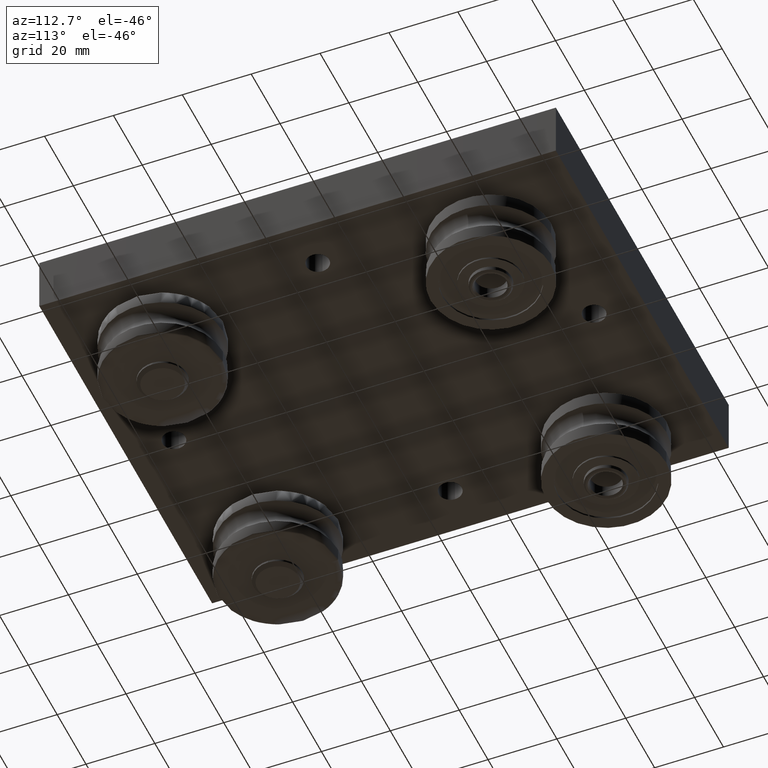
[diagram: clean part render]
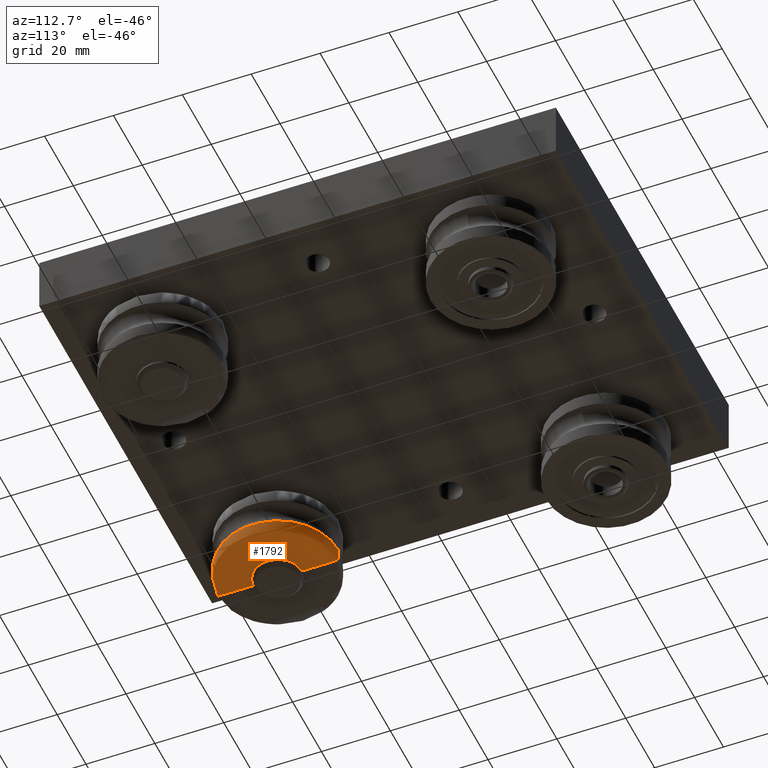
[diagram: same view with one face highlighted and labeled with its STEP entity id]
A machine part, auxiliary view. The second image highlights one B-rep face of the part: STEP entity #1792.
In plain terms, the highlighted face is a freeform B-spline surface patch.
Its self-contained STEP definition (entity closure, byte-faithful):
#17=(
BOUNDED_SURFACE()
B_SPLINE_SURFACE(2,2,((#3375,#3376,#3377,#3378,#3379,#3380,#3381,#3382,
#3383),(#3384,#3385,#3386,#3387,#3388,#3389,#3390,#3391,#3392),(#3393,#3394,
#3395,#3396,#3397,#3398,#3399,#3400,#3401),(#3402,#3403,#3404,#3405,#3406,
#3407,#3408,#3409,#3410),(#3411,#3412,#3413,#3414,#3415,#3416,#3417,#3418,
#3419),(#3420,#3421,#3422,#3423,#3424,#3425,#3426,#3427,#3428),(#3429,#3430,
#3431,#3432,#3433,#3434,#3435,#3436,#3437)),.UNSPECIFIED.,.F.,.T.,.F.)
B_SPLINE_SURFACE_WITH_KNOTS((3,2,2,3),(3,2,2,2,3),(-15.7666360627003,-12.1996117257709,
-11.4142135623734,-1.41421356237309),(-1.5707963267949,0.,1.5707963267949,
3.14159265358979,4.71238898038469),.UNSPECIFIED.)
GEOMETRIC_REPRESENTATION_ITEM()
RATIONAL_B_SPLINE_SURFACE(((1.,0.707106781186548,1.,0.707106781186548,1.,
0.707106781186548,1.,0.707106781186548,1.),(1.,0.707106781186548,1.,0.707106781186548,
1.,0.707106781186548,1.,0.707106781186548,1.),(1.,0.707106781186548,1.,
0.707106781186548,1.,0.707106781186548,1.,0.707106781186548,1.),(0.707106781186548,
0.5,0.707106781186548,0.5,0.707106781186548,0.5,0.707106781186548,0.5,0.707106781186548),
(1.,0.707106781186548,1.,0.707106781186548,1.,0.707106781186548,1.,0.707106781186548,
1.),(1.,0.707106781186548,1.,0.707106781186548,1.,0.707106781186548,1.,
0.707106781186548,1.),(1.,0.707106781186548,1.,0.707106781186548,1.,0.707106781186548,
1.,0.707106781186548,1.)))
REPRESENTATION_ITEM('')
SURFACE()
);
#76=(
BOUNDED_CURVE()
B_SPLINE_CURVE(2,(#3360,#3361,#3362,#3363,#3364,#3365,#3366),
 .UNSPECIFIED.,.F.,.F.)
B_SPLINE_CURVE_WITH_KNOTS((3,2,2,3),(-15.7344967849095,-12.1996117257709,
-11.4142135623734,-1.41421356237309),.UNSPECIFIED.)
CURVE()
GEOMETRIC_REPRESENTATION_ITEM()
RATIONAL_B_SPLINE_CURVE((1.,1.,1.,0.707106781186548,1.,1.,1.))
REPRESENTATION_ITEM('')
);
#77=(
BOUNDED_CURVE()
B_SPLINE_CURVE(2,(#3368,#3369,#3370,#3371,#3372,#3373,#3374),
 .UNSPECIFIED.,.F.,.F.)
B_SPLINE_CURVE_WITH_KNOTS((3,2,2,3),(-15.7344967849095,-12.1996117257709,
-11.4142135623734,-1.41421356237309),.UNSPECIFIED.)
CURVE()
GEOMETRIC_REPRESENTATION_ITEM()
RATIONAL_B_SPLINE_CURVE((1.,1.,1.,0.707106781186548,1.,1.,1.))
REPRESENTATION_ITEM('')
);
#330=FACE_OUTER_BOUND('',#478,.T.);
#478=EDGE_LOOP('',(#1535,#1536,#1537,#1538,#1539));
#788=CIRCLE('',#2094,17.4999999999996);
#804=CIRCLE('',#2110,6.99999999999949);
#805=CIRCLE('',#2111,6.99999999999949);
#916=VERTEX_POINT('',#3093);
#917=VERTEX_POINT('',#3095);
#918=VERTEX_POINT('',#3097);
#929=VERTEX_POINT('',#3128);
#930=VERTEX_POINT('',#3129);
#1128=EDGE_CURVE('',#929,#930,#788,.F.);
#1145=EDGE_CURVE('',#930,#918,#76,.T.);
#1147=EDGE_CURVE('',#929,#917,#77,.T.);
#1148=EDGE_CURVE('',#916,#917,#804,.T.);
#1149=EDGE_CURVE('',#918,#916,#805,.T.);
#1535=ORIENTED_EDGE('',*,*,#1128,.F.);
#1536=ORIENTED_EDGE('',*,*,#1147,.T.);
#1537=ORIENTED_EDGE('',*,*,#1148,.F.);
#1538=ORIENTED_EDGE('',*,*,#1149,.F.);
#1539=ORIENTED_EDGE('',*,*,#1145,.F.);
#1792=ADVANCED_FACE('',(#330),#17,.T.);
#2094=AXIS2_PLACEMENT_3D('',#3130,#2563,#2564);
#2110=AXIS2_PLACEMENT_3D('',#3438,#2595,#2596);
#2111=AXIS2_PLACEMENT_3D('',#3439,#2597,#2598);
#2563=DIRECTION('center_axis',(1.98389456597708E-15,0.,-1.));
#2564=DIRECTION('ref_axis',(-1.,0.,-1.98389456597708E-15));
#2595=DIRECTION('center_axis',(5.15460690004541E-14,5.15460690004614E-14,
-1.));
#2596=DIRECTION('ref_axis',(0.,1.,5.15460690004614E-14));
#2597=DIRECTION('center_axis',(5.15460690004541E-14,5.15460690004614E-14,
-1.));
#2598=DIRECTION('ref_axis',(0.,1.,5.15460690004614E-14));
#3093=CARTESIAN_POINT('',(-6.99999999999975,-4.94703179514622E-13,-30.3000000001195));
#3095=CARTESIAN_POINT('',(1.14352971536391E-11,7.00000000001182,-30.3000000001203));
#3097=CARTESIAN_POINT('',(1.14352971536391E-11,-6.99999999998718,-30.3000000001203));
#3128=CARTESIAN_POINT('',(1.03181352351101E-11,17.500000000012,-26.2651149409818));
#3129=CARTESIAN_POINT('',(1.14352971536391E-11,-17.4999999999877,-26.2651149409818));
#3130=CARTESIAN_POINT('Origin',(1.10942254597084E-11,1.2115308756222E-11,
-26.2651149409632));
#3360=CARTESIAN_POINT('Ctrl Pts',(1.14352971536391E-11,-17.4999999999877,
-26.2651149409818));
#3361=CARTESIAN_POINT('Ctrl Pts',(1.14352971536391E-11,-17.4999999999877,
-28.0325574705511));
#3362=CARTESIAN_POINT('Ctrl Pts',(1.14352971536391E-11,-17.4999999999877,
-29.8000000001203));
#3363=CARTESIAN_POINT('Ctrl Pts',(1.16186841942599E-11,-17.4999999999876,
-30.3000000001205));
#3364=CARTESIAN_POINT('Ctrl Pts',(1.14352971536391E-11,-16.9999999999877,
-30.3000000001203));
#3365=CARTESIAN_POINT('Ctrl Pts',(1.14352971536391E-11,-11.9999999999876,
-30.3000000001203));
#3366=CARTESIAN_POINT('Ctrl Pts',(1.14352971536391E-11,-6.99999999998718,
-30.3000000001203));
#3368=CARTESIAN_POINT('Ctrl Pts',(1.14352971536391E-11,17.5000000000119,
-26.2651149409818));
#3369=CARTESIAN_POINT('Ctrl Pts',(1.14352971536391E-11,17.5000000000119,
-28.0325574705511));
#3370=CARTESIAN_POINT('Ctrl Pts',(1.14352971536391E-11,17.5000000000119,
-29.8000000001203));
#3371=CARTESIAN_POINT('Ctrl Pts',(1.16186841942599E-11,17.5000000000119,
-30.3000000001205));
#3372=CARTESIAN_POINT('Ctrl Pts',(1.14352971536391E-11,17.0000000000118,
-30.3000000001203));
#3373=CARTESIAN_POINT('Ctrl Pts',(1.14352971536391E-11,12.0000000000118,
-30.3000000001203));
#3374=CARTESIAN_POINT('Ctrl Pts',(1.14352971536391E-11,7.00000000001182,
-30.3000000001203));
#3375=CARTESIAN_POINT('Ctrl Pts',(1.08304837304214E-11,17.5000000000118,
-26.232975663191));
#3376=CARTESIAN_POINT('Ctrl Pts',(-17.4999999999889,17.5000000000115,-26.232975663191));
#3377=CARTESIAN_POINT('Ctrl Pts',(-17.4999999999886,1.18516307878735E-11,
-26.232975663191));
#3378=CARTESIAN_POINT('Ctrl Pts',(-17.4999999999883,-17.4999999999878,-26.232975663191));
#3379=CARTESIAN_POINT('Ctrl Pts',(1.13578396671184E-11,-17.4999999999876,
-26.232975663191));
#3380=CARTESIAN_POINT('Ctrl Pts',(17.500000000011,-17.4999999999873,-26.2329756631909));
#3381=CARTESIAN_POINT('Ctrl Pts',(17.5000000000108,1.23789867245705E-11,
-26.2329756631909));
#3382=CARTESIAN_POINT('Ctrl Pts',(17.5000000000105,17.5000000000121,-26.2329756631909));
#3383=CARTESIAN_POINT('Ctrl Pts',(1.08304837304214E-11,17.5000000000118,
-26.232975663191));
#3384=CARTESIAN_POINT('Ctrl Pts',(1.08340220305207E-11,17.5000000000118,
-28.0164878316557));
#3385=CARTESIAN_POINT('Ctrl Pts',(-17.4999999999889,17.5000000000115,-28.0164878316557));
#3386=CARTESIAN_POINT('Ctrl Pts',(-17.4999999999886,1.18516307878735E-11,
-28.0164878316557));
#3387=CARTESIAN_POINT('Ctrl Pts',(-17.4999999999883,-17.4999999999878,-28.0164878316557));
#3388=CARTESIAN_POINT('Ctrl Pts',(1.13613779672177E-11,-17.4999999999876,
-28.0164878316557));
#3389=CARTESIAN_POINT('Ctrl Pts',(17.5000000000111,-17.4999999999873,-28.0164878316556));
#3390=CARTESIAN_POINT('Ctrl Pts',(17.5000000000108,1.23789867245705E-11,
-28.0164878316556));
#3391=CARTESIAN_POINT('Ctrl Pts',(17.5000000000105,17.5000000000121,-28.0164878316556));
#3392=CARTESIAN_POINT('Ctrl Pts',(1.08340220305207E-11,17.5000000000118,
-28.0164878316557));
#3393=CARTESIAN_POINT('Ctrl Pts',(1.08375603306201E-11,17.5000000000118,
-29.8000000001203));
#3394=CARTESIAN_POINT('Ctrl Pts',(-17.4999999999889,17.5000000000115,-29.8000000001203));
#3395=CARTESIAN_POINT('Ctrl Pts',(-17.4999999999886,1.18516307878735E-11,
-29.8000000001203));
#3396=CARTESIAN_POINT('Ctrl Pts',(-17.4999999999883,-17.4999999999878,-29.8000000001203));
#3397=CARTESIAN_POINT('Ctrl Pts',(1.13649162673171E-11,-17.4999999999876,
-29.8000000001203));
#3398=CARTESIAN_POINT('Ctrl Pts',(17.5000000000111,-17.4999999999873,-29.8000000001202));
#3399=CARTESIAN_POINT('Ctrl Pts',(17.5000000000108,1.23789867245705E-11,
-29.8000000001202));
#3400=CARTESIAN_POINT('Ctrl Pts',(17.5000000000105,17.5000000000121,-29.8000000001202));
#3401=CARTESIAN_POINT('Ctrl Pts',(1.08375603306201E-11,17.5000000000118,
-29.8000000001203));
#3402=CARTESIAN_POINT('Ctrl Pts',(1.08607457088256E-11,17.500000000012,
-30.3000000001205));
#3403=CARTESIAN_POINT('Ctrl Pts',(-17.499999999989,17.5000000000118,-30.3000000001205));
#3404=CARTESIAN_POINT('Ctrl Pts',(-17.4999999999888,1.1873824218796E-11,
-30.3000000001205));
#3405=CARTESIAN_POINT('Ctrl Pts',(-17.4999999999886,-17.499999999988,-30.3000000001205));
#3406=CARTESIAN_POINT('Ctrl Pts',(1.13437147836776E-11,-17.4999999999878,
-30.3000000001205));
#3407=CARTESIAN_POINT('Ctrl Pts',(17.5000000000112,-17.4999999999875,-30.3000000001204));
#3408=CARTESIAN_POINT('Ctrl Pts',(17.500000000011,1.2356793293648E-11,-30.3000000001204));
#3409=CARTESIAN_POINT('Ctrl Pts',(17.5000000000108,17.5000000000123,-30.3000000001204));
#3410=CARTESIAN_POINT('Ctrl Pts',(1.08607457088256E-11,17.500000000012,
-30.3000000001205));
#3411=CARTESIAN_POINT('Ctrl Pts',(1.08385522779031E-11,17.0000000000118,
-30.3000000001203));
#3412=CARTESIAN_POINT('Ctrl Pts',(-16.9999999999889,17.0000000000115,-30.3000000001203));
#3413=CARTESIAN_POINT('Ctrl Pts',(-16.9999999999886,1.18516307878735E-11,
-30.3000000001203));
#3414=CARTESIAN_POINT('Ctrl Pts',(-16.9999999999883,-16.9999999999878,-30.3000000001203));
#3415=CARTESIAN_POINT('Ctrl Pts',(1.13659082146001E-11,-16.9999999999876,
-30.3000000001203));
#3416=CARTESIAN_POINT('Ctrl Pts',(17.0000000000111,-16.9999999999873,-30.3000000001202));
#3417=CARTESIAN_POINT('Ctrl Pts',(17.0000000000108,1.23789867245705E-11,
-30.3000000001202));
#3418=CARTESIAN_POINT('Ctrl Pts',(17.0000000000105,17.0000000000121,-30.3000000001202));
#3419=CARTESIAN_POINT('Ctrl Pts',(1.08385522779031E-11,17.0000000000118,
-30.3000000001203));
#3420=CARTESIAN_POINT('Ctrl Pts',(1.08107967022875E-11,12.0000000000118,
-30.3000000001203));
#3421=CARTESIAN_POINT('Ctrl Pts',(-11.9999999999889,12.0000000000115,-30.3000000001203));
#3422=CARTESIAN_POINT('Ctrl Pts',(-11.9999999999886,1.18238752122579E-11,
-30.3000000001203));
#3423=CARTESIAN_POINT('Ctrl Pts',(-11.9999999999883,-11.9999999999879,-30.3000000001203));
#3424=CARTESIAN_POINT('Ctrl Pts',(1.13936637902157E-11,-11.9999999999876,
-30.3000000001203));
#3425=CARTESIAN_POINT('Ctrl Pts',(12.0000000000111,-11.9999999999873,-30.3000000001203));
#3426=CARTESIAN_POINT('Ctrl Pts',(12.0000000000108,1.24067423001861E-11,
-30.3000000001203));
#3427=CARTESIAN_POINT('Ctrl Pts',(12.0000000000105,12.0000000000121,-30.3000000001203));
#3428=CARTESIAN_POINT('Ctrl Pts',(1.08107967022875E-11,12.0000000000118,
-30.3000000001203));
#3429=CARTESIAN_POINT('Ctrl Pts',(1.08107967022875E-11,7.00000000001179,
-30.3000000001203));
#3430=CARTESIAN_POINT('Ctrl Pts',(-6.99999999998886,7.0000000000115,-30.3000000001203));
#3431=CARTESIAN_POINT('Ctrl Pts',(-6.99999999998857,1.18238752122579E-11,
-30.3000000001203));
#3432=CARTESIAN_POINT('Ctrl Pts',(-6.99999999998828,-6.99999999998785,-30.3000000001203));
#3433=CARTESIAN_POINT('Ctrl Pts',(1.13936637902157E-11,-6.99999999998756,
-30.3000000001203));
#3434=CARTESIAN_POINT('Ctrl Pts',(7.00000000001107,-6.99999999998727,-30.3000000001203));
#3435=CARTESIAN_POINT('Ctrl Pts',(7.00000000001078,1.24067423001861E-11,
-30.3000000001203));
#3436=CARTESIAN_POINT('Ctrl Pts',(7.00000000001048,7.00000000001208,-30.3000000001203));
#3437=CARTESIAN_POINT('Ctrl Pts',(1.08107967022875E-11,7.00000000001179,
-30.3000000001203));
#3438=CARTESIAN_POINT('Origin',(1.14352971536391E-11,1.18238752122579E-11,
-30.30000000012));
#3439=CARTESIAN_POINT('Origin',(1.14352971536391E-11,1.18238752122579E-11,
-30.30000000012));